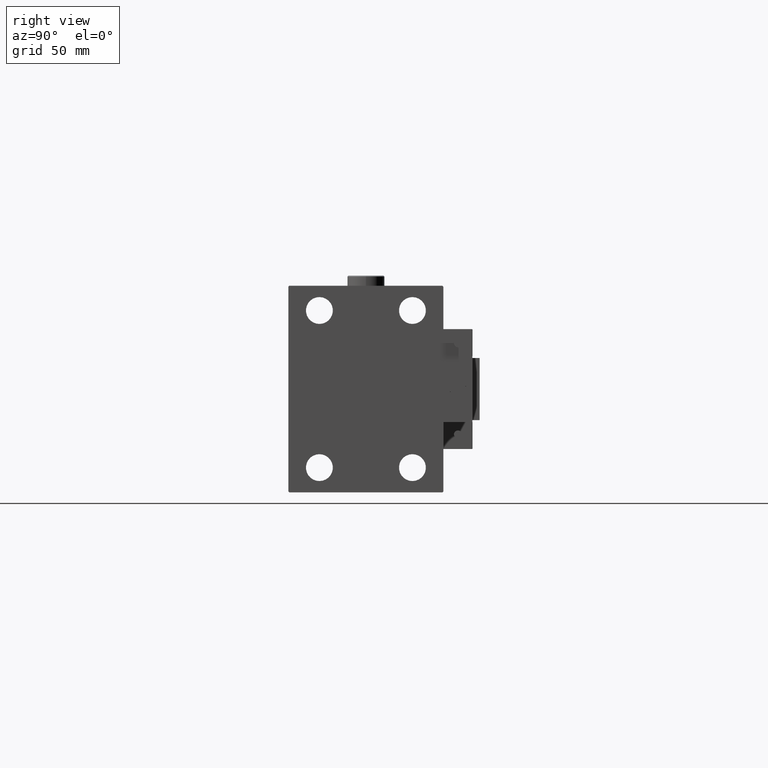
[diagram: clean part render]
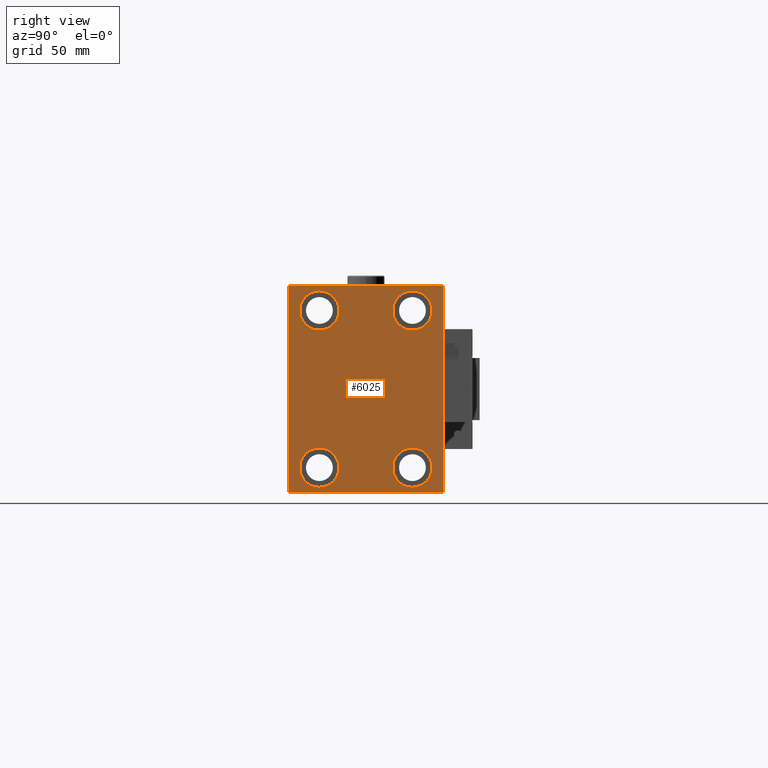
[diagram: same view with one face highlighted and labeled with its STEP entity id]
A machine part, right view. The second image highlights one B-rep face of the part: STEP entity #6025.
In plain terms, the highlighted planar face has unit normal (1, 0, 0).
Its self-contained STEP definition (entity closure, byte-faithful):
#931 = CARTESIAN_POINT ( 'NONE',  ( 173.0000000000000000, 22.50000000000000355, 37.99999999999999289 ) ) ;
#966 = VERTEX_POINT ( 'NONE', #9036 ) ;
#1157 = LINE ( 'NONE', #17969, #37161 ) ;
#1336 = EDGE_CURVE ( 'NONE', #21758, #53336, #30072, .T. ) ;
#1408 = VERTEX_POINT ( 'NONE', #20429 ) ;
#1717 = DIRECTION ( 'NONE',  ( 0.000000000000000000, -1.387778780781445676E-16, 1.000000000000000000 ) ) ;
#1718 = CARTESIAN_POINT ( 'NONE',  ( 173.0000000000000000, 0.000000000000000000, 0.000000000000000000 ) ) ;
#1895 = VERTEX_POINT ( 'NONE', #13722 ) ;
#2244 = ORIENTED_EDGE ( 'NONE', *, *, #19032, .T. ) ;
#2387 = AXIS2_PLACEMENT_3D ( 'NONE', #931, #8934, #30160 ) ;
#2737 = CARTESIAN_POINT ( 'NONE',  ( 173.0000000000000000, -22.50000000000000711, -28.49999999999998934 ) ) ;
#2929 = EDGE_LOOP ( 'NONE', ( #19951, #44890 ) ) ;
#3611 = LINE ( 'NONE', #37208, #28834 ) ;
#4755 = DIRECTION ( 'NONE',  ( -1.000000000000000000, -0.000000000000000000, -0.000000000000000000 ) ) ;
#4844 = DIRECTION ( 'NONE',  ( -1.000000000000000000, -0.000000000000000000, -0.000000000000000000 ) ) ;
#5131 = CARTESIAN_POINT ( 'NONE',  ( 173.0000000000000000, 22.49999999999999645, -28.49999999999998934 ) ) ;
#5305 = LINE ( 'NONE', #52138, #49447 ) ;
#6025 = ADVANCED_FACE ( 'NONE', ( #51882, #6133, #44698, #14120, #52429 ), #27900, .T. ) ;
#6133 = FACE_BOUND ( 'NONE', #39712, .T. ) ;
#6399 = AXIS2_PLACEMENT_3D ( 'NONE', #28862, #45649, #7370 ) ;
#6518 = VERTEX_POINT ( 'NONE', #5131 ) ;
#6719 = EDGE_CURVE ( 'NONE', #6518, #1895, #38079, .T. ) ;
#7295 = AXIS2_PLACEMENT_3D ( 'NONE', #26369, #21417, #38494 ) ;
#7370 = DIRECTION ( 'NONE',  ( 0.000000000000000000, 0.000000000000000000, 1.000000000000000000 ) ) ;
#8364 = CARTESIAN_POINT ( 'NONE',  ( 173.0000000000000000, 36.99999999999999289, 50.00000000000000711 ) ) ;
#8934 = DIRECTION ( 'NONE',  ( -1.000000000000000000, -0.000000000000000000, -0.000000000000000000 ) ) ;
#9004 = LINE ( 'NONE', #42334, #40019 ) ;
#9036 = CARTESIAN_POINT ( 'NONE',  ( 173.0000000000000000, -22.49999999999999645, 47.49999999999999289 ) ) ;
#9453 = AXIS2_PLACEMENT_3D ( 'NONE', #15055, #23325, #45350 ) ;
#9476 = CARTESIAN_POINT ( 'NONE',  ( 173.0000000000000000, -22.49999999999999645, 28.49999999999998934 ) ) ;
#10079 = ORIENTED_EDGE ( 'NONE', *, *, #40357, .T. ) ;
#10147 = VECTOR ( 'NONE', #33044, 999.9999999999998863 ) ;
#10241 = EDGE_CURVE ( 'NONE', #40513, #35967, #9004, .T. ) ;
#10781 = DIRECTION ( 'NONE',  ( 0.000000000000000000, 1.000000000000000000, 9.251858538542970348E-17 ) ) ;
#11401 = CARTESIAN_POINT ( 'NONE',  ( 173.0000000000000000, -37.50000000000000711, 49.49999999999996447 ) ) ;
#11845 = CARTESIAN_POINT ( 'NONE',  ( 173.0000000000000000, 37.50000000000000711, -49.50000000000000000 ) ) ;
#12637 = CARTESIAN_POINT ( 'NONE',  ( 173.0000000000000000, 22.50000000000000355, 47.49999999999999289 ) ) ;
#12826 = ORIENTED_EDGE ( 'NONE', *, *, #51621, .T. ) ;
#13392 = AXIS2_PLACEMENT_3D ( 'NONE', #1718, #39201, #30934 ) ;
#13722 = CARTESIAN_POINT ( 'NONE',  ( 173.0000000000000000, 22.49999999999999645, -47.49999999999999289 ) ) ;
#14120 = FACE_BOUND ( 'NONE', #2929, .T. ) ;
#14378 = DIRECTION ( 'NONE',  ( -0.000000000000000000, 0.7071067811865474617, -0.7071067811865474617 ) ) ;
#14770 = CIRCLE ( 'NONE', #45567, 9.500000000000001776 ) ;
#15055 = CARTESIAN_POINT ( 'NONE',  ( 173.0000000000000000, -22.49999999999999645, 37.99999999999999289 ) ) ;
#15305 = EDGE_CURVE ( 'NONE', #34160, #40513, #15463, .T. ) ;
#15317 = LINE ( 'NONE', #43967, #45862 ) ;
#15463 = LINE ( 'NONE', #36399, #23502 ) ;
#15689 = ORIENTED_EDGE ( 'NONE', *, *, #15305, .T. ) ;
#17284 = EDGE_LOOP ( 'NONE', ( #12826, #22442 ) ) ;
#17953 = VERTEX_POINT ( 'NONE', #41117 ) ;
#17969 = CARTESIAN_POINT ( 'NONE',  ( 173.0000000000000000, -43.50000000000000711, -43.50000000000000711 ) ) ;
#19032 = EDGE_CURVE ( 'NONE', #35539, #966, #34078, .T. ) ;
#19495 = EDGE_CURVE ( 'NONE', #966, #35539, #32317, .T. ) ;
#19574 = CIRCLE ( 'NONE', #22992, 9.500000000000001776 ) ;
#19639 = CIRCLE ( 'NONE', #7295, 9.500000000000001776 ) ;
#19951 = ORIENTED_EDGE ( 'NONE', *, *, #1336, .T. ) ;
#20429 = CARTESIAN_POINT ( 'NONE',  ( 173.0000000000000000, -37.50000000000000711, -49.50000000000000711 ) ) ;
#20483 = CARTESIAN_POINT ( 'NONE',  ( 173.0000000000000000, 22.49999999999999645, -37.99999999999999289 ) ) ;
#20828 = EDGE_CURVE ( 'NONE', #37529, #51690, #41567, .T. ) ;
#21101 = CARTESIAN_POINT ( 'NONE',  ( 173.0000000000000000, -22.50000000000000711, -37.99999999999999289 ) ) ;
#21417 = DIRECTION ( 'NONE',  ( -1.000000000000000000, -0.000000000000000000, -0.000000000000000000 ) ) ;
#21571 = ORIENTED_EDGE ( 'NONE', *, *, #42459, .T. ) ;
#21714 = VERTEX_POINT ( 'NONE', #40404 ) ;
#21758 = VERTEX_POINT ( 'NONE', #32960 ) ;
#22046 = ORIENTED_EDGE ( 'NONE', *, *, #50860, .T. ) ;
#22442 = ORIENTED_EDGE ( 'NONE', *, *, #6719, .T. ) ;
#22643 = CIRCLE ( 'NONE', #2387, 9.500000000000001776 ) ;
#22992 = AXIS2_PLACEMENT_3D ( 'NONE', #20483, #29309, #41968 ) ;
#23041 = CARTESIAN_POINT ( 'NONE',  ( 173.0000000000000000, -22.50000000000000711, -37.99999999999999289 ) ) ;
#23044 = EDGE_CURVE ( 'NONE', #35967, #37529, #30933, .T. ) ;
#23325 = DIRECTION ( 'NONE',  ( -1.000000000000000000, -0.000000000000000000, -0.000000000000000000 ) ) ;
#23502 = VECTOR ( 'NONE', #10781, 1000.000000000000000 ) ;
#23519 = VERTEX_POINT ( 'NONE', #12637 ) ;
#23859 = ORIENTED_EDGE ( 'NONE', *, *, #38055, .T. ) ;
#24121 = DIRECTION ( 'NONE',  ( 0.000000000000000000, 0.000000000000000000, -1.000000000000000000 ) ) ;
#24585 = ORIENTED_EDGE ( 'NONE', *, *, #10241, .T. ) ;
#25765 = EDGE_LOOP ( 'NONE', ( #21571, #25945 ) ) ;
#25945 = ORIENTED_EDGE ( 'NONE', *, *, #26232, .T. ) ;
#25958 = CARTESIAN_POINT ( 'NONE',  ( 173.0000000000000000, -22.49999999999999645, 37.99999999999999289 ) ) ;
#26232 = EDGE_CURVE ( 'NONE', #23519, #17953, #22643, .T. ) ;
#26240 = CARTESIAN_POINT ( 'NONE',  ( 173.0000000000000000, 37.49999999999999289, 49.50000000000000000 ) ) ;
#26271 = ORIENTED_EDGE ( 'NONE', *, *, #26844, .T. ) ;
#26369 = CARTESIAN_POINT ( 'NONE',  ( 173.0000000000000000, 22.50000000000000355, 37.99999999999999289 ) ) ;
#26844 = EDGE_CURVE ( 'NONE', #21714, #30851, #3611, .T. ) ;
#27095 = EDGE_CURVE ( 'NONE', #53336, #21758, #14770, .T. ) ;
#27900 = PLANE ( 'NONE',  #13392 ) ;
#28834 = VECTOR ( 'NONE', #54031, 1000.000000000000114 ) ;
#28862 = CARTESIAN_POINT ( 'NONE',  ( 173.0000000000000000, 22.49999999999999645, -37.99999999999999289 ) ) ;
#29309 = DIRECTION ( 'NONE',  ( -1.000000000000000000, -0.000000000000000000, -0.000000000000000000 ) ) ;
#30072 = CIRCLE ( 'NONE', #45020, 9.500000000000001776 ) ;
#30160 = DIRECTION ( 'NONE',  ( 0.000000000000000000, 0.000000000000000000, 1.000000000000000000 ) ) ;
#30851 = VERTEX_POINT ( 'NONE', #11401 ) ;
#30933 = LINE ( 'NONE', #34520, #37461 ) ;
#30934 = DIRECTION ( 'NONE',  ( 0.000000000000000000, 0.000000000000000000, -1.000000000000000000 ) ) ;
#31877 = ORIENTED_EDGE ( 'NONE', *, *, #23044, .T. ) ;
#32317 = CIRCLE ( 'NONE', #49019, 9.500000000000001776 ) ;
#32500 = CARTESIAN_POINT ( 'NONE',  ( 173.0000000000000000, 43.50000000000026290, 43.49999999999965894 ) ) ;
#32960 = CARTESIAN_POINT ( 'NONE',  ( 173.0000000000000000, -22.50000000000000711, -47.49999999999999289 ) ) ;
#33044 = DIRECTION ( 'NONE',  ( -0.000000000000000000, -0.7071067811865425767, 0.7071067811865525687 ) ) ;
#34078 = CIRCLE ( 'NONE', #9453, 9.500000000000001776 ) ;
#34160 = VERTEX_POINT ( 'NONE', #47783 ) ;
#34520 = CARTESIAN_POINT ( 'NONE',  ( 173.0000000000000000, 37.50000000000000711, -50.00000000000000000 ) ) ;
#35055 = DIRECTION ( 'NONE',  ( 0.000000000000000000, -1.000000000000000000, -1.850371707708594316E-16 ) ) ;
#35539 = VERTEX_POINT ( 'NONE', #9476 ) ;
#35967 = VERTEX_POINT ( 'NONE', #11845 ) ;
#36399 = CARTESIAN_POINT ( 'NONE',  ( 173.0000000000000000, -37.50000000000000711, -50.00000000000000711 ) ) ;
#37161 = VECTOR ( 'NONE', #14378, 1000.000000000000114 ) ;
#37208 = CARTESIAN_POINT ( 'NONE',  ( 173.0000000000000000, -43.49999999999998579, 43.49999999999998579 ) ) ;
#37461 = VECTOR ( 'NONE', #1717, 1000.000000000000000 ) ;
#37529 = VERTEX_POINT ( 'NONE', #26240 ) ;
#37861 = EDGE_LOOP ( 'NONE', ( #10079, #26271, #23859, #22046, #15689, #24585, #31877, #45531 ) ) ;
#38055 = EDGE_CURVE ( 'NONE', #30851, #1408, #15317, .T. ) ;
#38079 = CIRCLE ( 'NONE', #6399, 9.500000000000001776 ) ;
#38174 = DIRECTION ( 'NONE',  ( 0.000000000000000000, 0.000000000000000000, 1.000000000000000000 ) ) ;
#38494 = DIRECTION ( 'NONE',  ( 0.000000000000000000, 0.000000000000000000, 1.000000000000000000 ) ) ;
#39201 = DIRECTION ( 'NONE',  ( 1.000000000000000000, 0.000000000000000000, 0.000000000000000000 ) ) ;
#39712 = EDGE_LOOP ( 'NONE', ( #2244, #43635 ) ) ;
#39853 = DIRECTION ( 'NONE',  ( -1.000000000000000000, -0.000000000000000000, -0.000000000000000000 ) ) ;
#40019 = VECTOR ( 'NONE', #42612, 1000.000000000000114 ) ;
#40357 = EDGE_CURVE ( 'NONE', #51690, #21714, #5305, .T. ) ;
#40404 = CARTESIAN_POINT ( 'NONE',  ( 173.0000000000000000, -36.99999999999997868, 49.99999999999999289 ) ) ;
#40513 = VERTEX_POINT ( 'NONE', #53240 ) ;
#41117 = CARTESIAN_POINT ( 'NONE',  ( 173.0000000000000000, 22.50000000000000355, 28.49999999999998934 ) ) ;
#41567 = LINE ( 'NONE', #32500, #10147 ) ;
#41968 = DIRECTION ( 'NONE',  ( 0.000000000000000000, 0.000000000000000000, 1.000000000000000000 ) ) ;
#42334 = CARTESIAN_POINT ( 'NONE',  ( 173.0000000000000000, 43.50000000000000711, -43.50000000000000711 ) ) ;
#42459 = EDGE_CURVE ( 'NONE', #17953, #23519, #19639, .T. ) ;
#42612 = DIRECTION ( 'NONE',  ( -0.000000000000000000, 0.7071067811865474617, 0.7071067811865474617 ) ) ;
#43635 = ORIENTED_EDGE ( 'NONE', *, *, #19495, .T. ) ;
#43967 = CARTESIAN_POINT ( 'NONE',  ( 173.0000000000000000, -37.50000000000000711, 49.99999999999999289 ) ) ;
#44698 = FACE_BOUND ( 'NONE', #25765, .T. ) ;
#44807 = DIRECTION ( 'NONE',  ( 0.000000000000000000, 0.000000000000000000, 1.000000000000000000 ) ) ;
#44890 = ORIENTED_EDGE ( 'NONE', *, *, #27095, .T. ) ;
#45020 = AXIS2_PLACEMENT_3D ( 'NONE', #21101, #4844, #38174 ) ;
#45350 = DIRECTION ( 'NONE',  ( 0.000000000000000000, 0.000000000000000000, 1.000000000000000000 ) ) ;
#45531 = ORIENTED_EDGE ( 'NONE', *, *, #20828, .T. ) ;
#45567 = AXIS2_PLACEMENT_3D ( 'NONE', #23041, #39853, #44807 ) ;
#45649 = DIRECTION ( 'NONE',  ( -1.000000000000000000, -0.000000000000000000, -0.000000000000000000 ) ) ;
#45862 = VECTOR ( 'NONE', #24121, 1000.000000000000000 ) ;
#47783 = CARTESIAN_POINT ( 'NONE',  ( 173.0000000000000000, -37.00000000000000711, -50.00000000000000711 ) ) ;
#49019 = AXIS2_PLACEMENT_3D ( 'NONE', #25958, #4755, #50773 ) ;
#49447 = VECTOR ( 'NONE', #35055, 1000.000000000000000 ) ;
#50773 = DIRECTION ( 'NONE',  ( 0.000000000000000000, 0.000000000000000000, 1.000000000000000000 ) ) ;
#50860 = EDGE_CURVE ( 'NONE', #1408, #34160, #1157, .T. ) ;
#51621 = EDGE_CURVE ( 'NONE', #1895, #6518, #19574, .T. ) ;
#51690 = VERTEX_POINT ( 'NONE', #8364 ) ;
#51882 = FACE_BOUND ( 'NONE', #17284, .T. ) ;
#52138 = CARTESIAN_POINT ( 'NONE',  ( 173.0000000000000000, 37.49999999999999289, 50.00000000000000711 ) ) ;
#52429 = FACE_OUTER_BOUND ( 'NONE', #37861, .T. ) ;
#53240 = CARTESIAN_POINT ( 'NONE',  ( 173.0000000000000000, 37.00000000000000711, -50.00000000000000000 ) ) ;
#53336 = VERTEX_POINT ( 'NONE', #2737 ) ;
#54031 = DIRECTION ( 'NONE',  ( 0.000000000000000000, -0.7071067811865474617, -0.7071067811865474617 ) ) ;